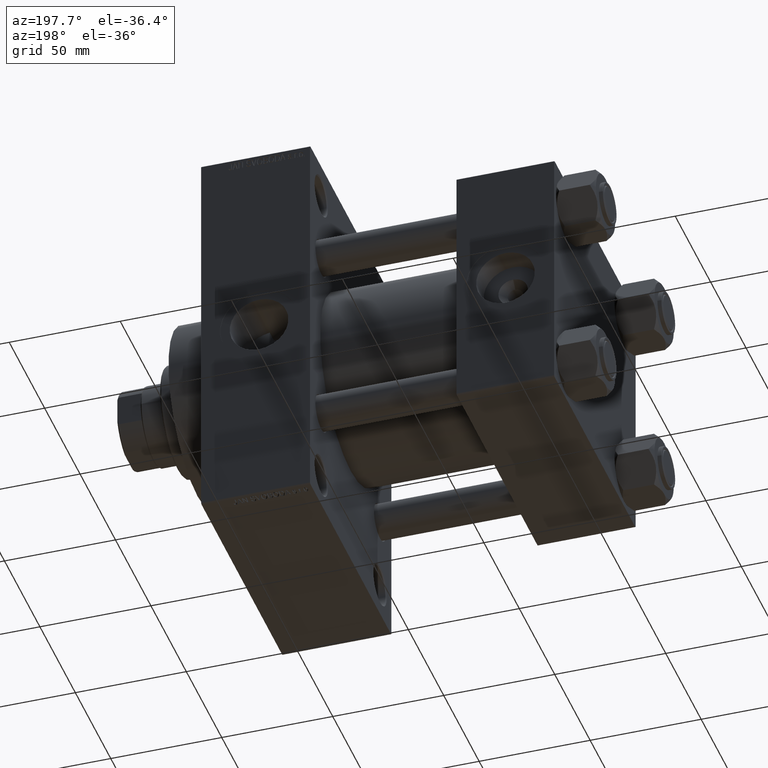
[diagram: clean part render]
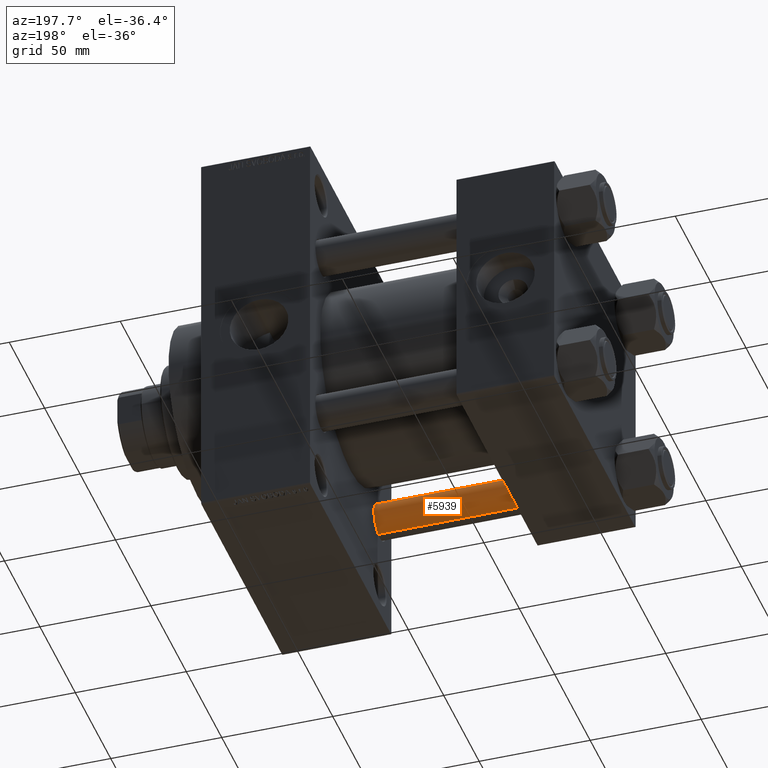
[diagram: same view with one face highlighted and labeled with its STEP entity id]
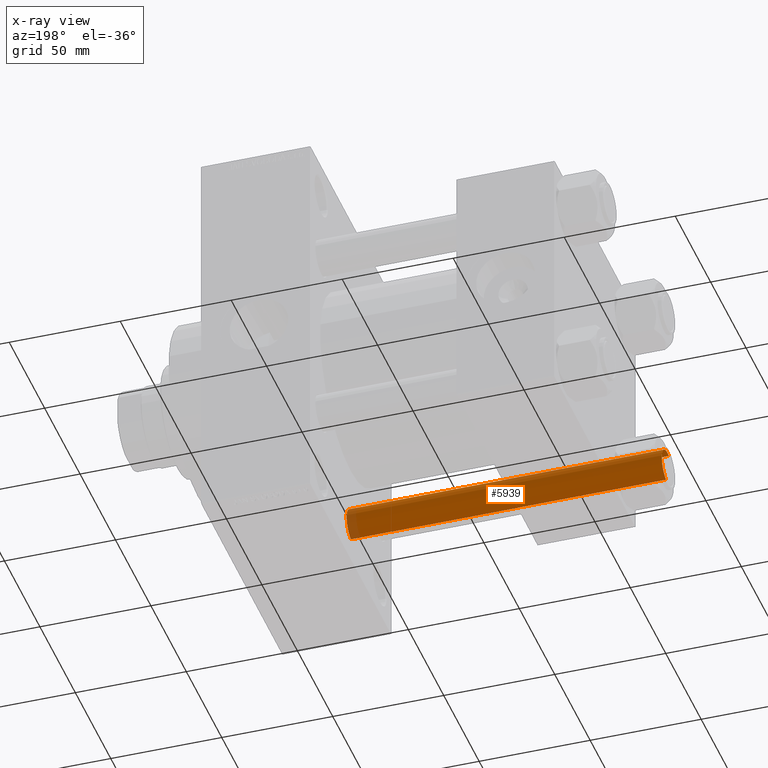
[diagram: x-ray of the same camera — body ghosted, the highlighted face saturated]
A machine part, auxiliary view. The second image highlights one B-rep face of the part: STEP entity #5939.
The next image is the same camera in x-ray: the body ghosted, the highlighted face saturated — about 4% of this face is hidden behind the body in this view.
In plain terms, the highlighted cylindrical surface (edge-blend (fillet) strip) has radius 8 mm, axis along (-1, 0, 0).
Its self-contained STEP definition (entity closure, byte-faithful):
#233 = CARTESIAN_POINT ( 'NONE',  ( 8.000000000000000000, 9.797174393178825657E-16, 143.0000000000000000 ) ) ;
#1476 = ORIENTED_EDGE ( 'NONE', *, *, #20454, .T. ) ;
#2926 = DIRECTION ( 'NONE',  ( -1.000000000000000000, 0.000000000000000000, 0.000000000000000000 ) ) ;
#4217 = DIRECTION ( 'NONE',  ( 1.000000000000000000, 0.000000000000000000, 0.000000000000000000 ) ) ;
#4434 = AXIS2_PLACEMENT_3D ( 'NONE', #28989, #21270, #2926 ) ;
#5939 = ADVANCED_FACE ( 'NONE', ( #29712 ), #47058, .T. ) ;
#6561 = CARTESIAN_POINT ( 'NONE',  ( -8.000000000000000000, 0.000000000000000000, 142.4999999999999716 ) ) ;
#7222 = DIRECTION ( 'NONE',  ( -0.000000000000000000, -0.000000000000000000, -1.000000000000000000 ) ) ;
#7423 = EDGE_CURVE ( 'NONE', #12580, #45905, #12990, .T. ) ;
#12580 = VERTEX_POINT ( 'NONE', #6561 ) ;
#12990 = LINE ( 'NONE', #33219, #31484 ) ;
#13097 = EDGE_CURVE ( 'NONE', #43935, #26281, #18557, .T. ) ;
#13343 = AXIS2_PLACEMENT_3D ( 'NONE', #33418, #26647, #4217 ) ;
#18557 = LINE ( 'NONE', #233, #40094 ) ;
#19848 = CARTESIAN_POINT ( 'NONE',  ( -8.000000000000000000, 0.000000000000000000, 0.4999999999999726885 ) ) ;
#20454 = EDGE_CURVE ( 'NONE', #43935, #12580, #27167, .T. ) ;
#21134 = EDGE_LOOP ( 'NONE', ( #27434, #1476, #45060, #34605 ) ) ;
#21270 = DIRECTION ( 'NONE',  ( -0.000000000000000000, -0.000000000000000000, -1.000000000000000000 ) ) ;
#21753 = AXIS2_PLACEMENT_3D ( 'NONE', #31735, #46189, #38483 ) ;
#23105 = CARTESIAN_POINT ( 'NONE',  ( 8.000000000000000000, 9.797174393178825657E-16, 142.4999999999999716 ) ) ;
#23364 = CIRCLE ( 'NONE', #13343, 8.000000000000000000 ) ;
#26281 = VERTEX_POINT ( 'NONE', #30811 ) ;
#26647 = DIRECTION ( 'NONE',  ( -0.000000000000000000, -0.000000000000000000, 1.000000000000000000 ) ) ;
#27167 = CIRCLE ( 'NONE', #21753, 8.000000000000000000 ) ;
#27434 = ORIENTED_EDGE ( 'NONE', *, *, #13097, .F. ) ;
#28989 = CARTESIAN_POINT ( 'NONE',  ( 0.000000000000000000, 0.000000000000000000, 143.0000000000000000 ) ) ;
#29712 = FACE_OUTER_BOUND ( 'NONE', #21134, .T. ) ;
#30811 = CARTESIAN_POINT ( 'NONE',  ( 8.000000000000000000, 9.797174393178825657E-16, 0.4999999999999726885 ) ) ;
#31484 = VECTOR ( 'NONE', #47430, 1000.000000000000000 ) ;
#31735 = CARTESIAN_POINT ( 'NONE',  ( 0.000000000000000000, 0.000000000000000000, 142.4999999999999716 ) ) ;
#33219 = CARTESIAN_POINT ( 'NONE',  ( -8.000000000000000000, 0.000000000000000000, 143.0000000000000000 ) ) ;
#33418 = CARTESIAN_POINT ( 'NONE',  ( 0.000000000000000000, 0.000000000000000000, 0.4999999999999726885 ) ) ;
#34605 = ORIENTED_EDGE ( 'NONE', *, *, #37458, .T. ) ;
#37458 = EDGE_CURVE ( 'NONE', #45905, #26281, #23364, .T. ) ;
#38483 = DIRECTION ( 'NONE',  ( 1.000000000000000000, 0.000000000000000000, 0.000000000000000000 ) ) ;
#40094 = VECTOR ( 'NONE', #7222, 1000.000000000000000 ) ;
#43935 = VERTEX_POINT ( 'NONE', #23105 ) ;
#45060 = ORIENTED_EDGE ( 'NONE', *, *, #7423, .T. ) ;
#45905 = VERTEX_POINT ( 'NONE', #19848 ) ;
#46189 = DIRECTION ( 'NONE',  ( 0.000000000000000000, 0.000000000000000000, -1.000000000000000000 ) ) ;
#47058 = CYLINDRICAL_SURFACE ( 'NONE', #4434, 8.000000000000000000 ) ;
#47430 = DIRECTION ( 'NONE',  ( -0.000000000000000000, -0.000000000000000000, -1.000000000000000000 ) ) ;